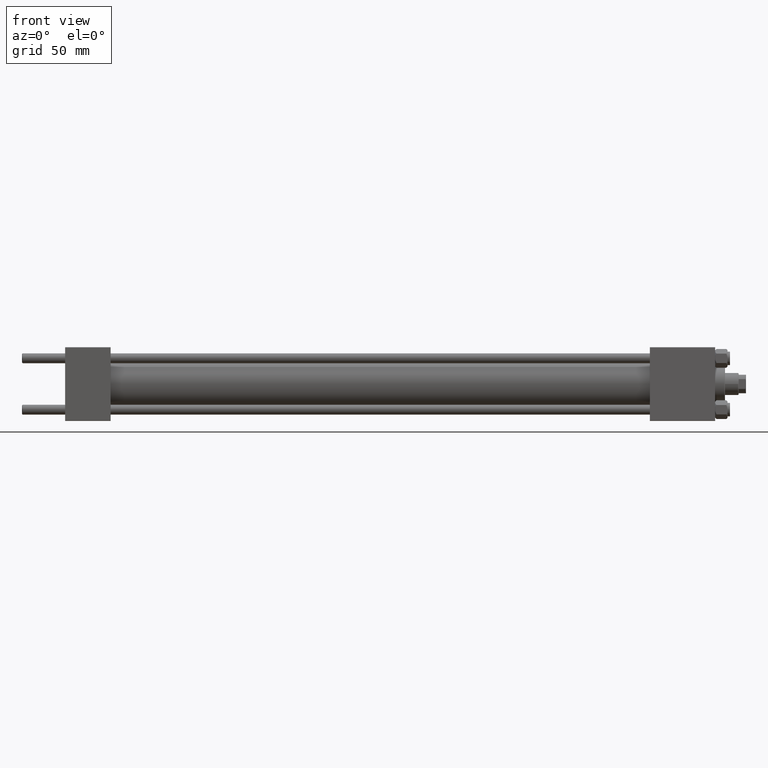
[diagram: clean part render]
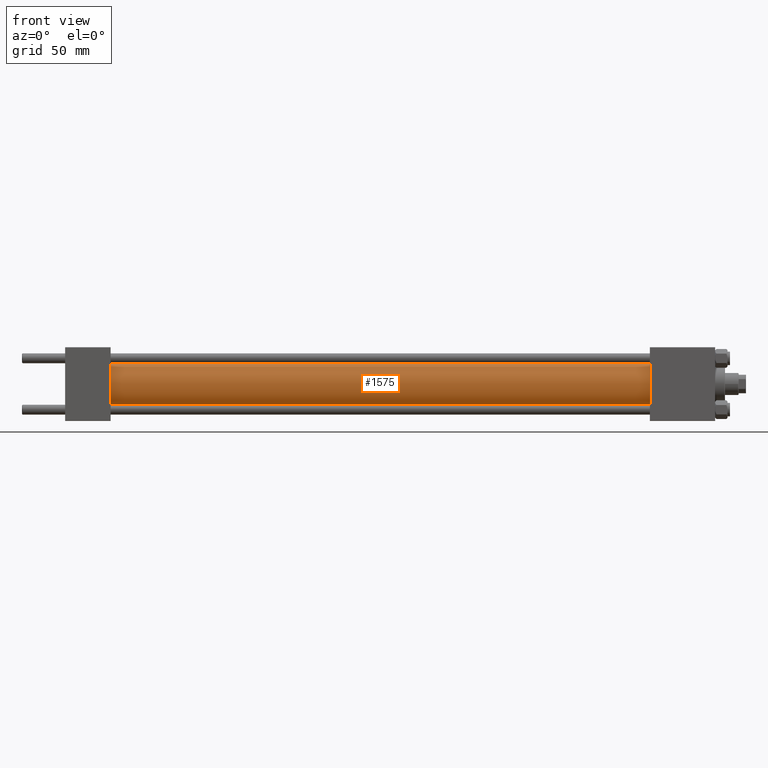
[diagram: same view with one face highlighted and labeled with its STEP entity id]
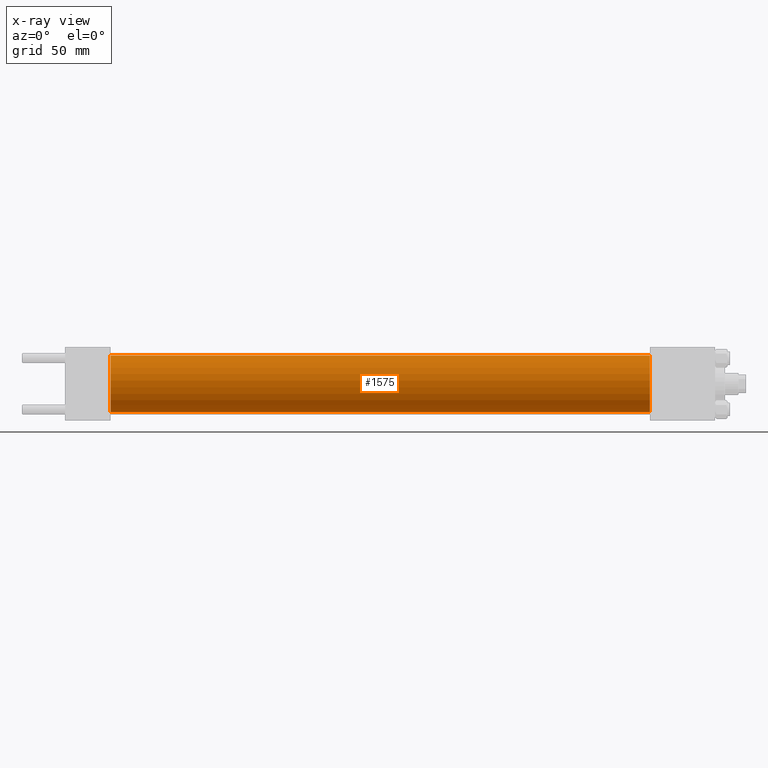
[diagram: x-ray of the same camera — body ghosted, the highlighted face saturated]
A machine part, front view. The second image highlights one B-rep face of the part: STEP entity #1575.
The next image is the same camera in x-ray: the body ghosted, the highlighted face saturated — about 0% of this face is hidden behind the body in this view.
In plain terms, the highlighted cylindrical surface (edge-blend (fillet) strip) has radius 23 mm, axis along (-1, -0, -0).
Its self-contained STEP definition (entity closure, byte-faithful):
#1575 = ADVANCED_FACE ( 'NONE', ( #17851 ), #48351, .T. ) ;
#2968 = CARTESIAN_POINT ( 'NONE',  ( 36.99999999999997868, 0.000000000000000000, 23.00000000000000000 ) ) ;
#3277 = LINE ( 'NONE', #14883, #27458 ) ;
#3314 = EDGE_CURVE ( 'NONE', #41269, #28073, #39149, .T. ) ;
#3327 = CARTESIAN_POINT ( 'NONE',  ( 36.99999999999997868, 0.000000000000000000, 0.000000000000000000 ) ) ;
#5338 = CARTESIAN_POINT ( 'NONE',  ( 475.0000000000000000, 2.816687638038912352E-15, -23.00000000000000000 ) ) ;
#5677 = VERTEX_POINT ( 'NONE', #2968 ) ;
#6035 = AXIS2_PLACEMENT_3D ( 'NONE', #41283, #36755, #32978 ) ;
#8876 = DIRECTION ( 'NONE',  ( 0.000000000000000000, 0.000000000000000000, -1.000000000000000000 ) ) ;
#10360 = DIRECTION ( 'NONE',  ( -1.000000000000000000, -0.000000000000000000, -0.000000000000000000 ) ) ;
#10455 = ORIENTED_EDGE ( 'NONE', *, *, #3314, .F. ) ;
#11193 = EDGE_CURVE ( 'NONE', #41269, #5677, #31264, .T. ) ;
#11225 = VECTOR ( 'NONE', #12606, 1000.000000000000000 ) ;
#12403 = CARTESIAN_POINT ( 'NONE',  ( 475.0000000000000000, 0.000000000000000000, 0.000000000000000000 ) ) ;
#12606 = DIRECTION ( 'NONE',  ( -1.000000000000000000, -0.000000000000000000, -0.000000000000000000 ) ) ;
#12873 = EDGE_LOOP ( 'NONE', ( #45505, #10455, #36385, #27084 ) ) ;
#14883 = CARTESIAN_POINT ( 'NONE',  ( 475.0000000000000000, 2.816687638038912352E-15, -23.00000000000000000 ) ) ;
#17851 = FACE_OUTER_BOUND ( 'NONE', #12873, .T. ) ;
#17949 = AXIS2_PLACEMENT_3D ( 'NONE', #3327, #49721, #41901 ) ;
#23053 = AXIS2_PLACEMENT_3D ( 'NONE', #12403, #43392, #8876 ) ;
#26300 = VERTEX_POINT ( 'NONE', #49341 ) ;
#27084 = ORIENTED_EDGE ( 'NONE', *, *, #41692, .T. ) ;
#27458 = VECTOR ( 'NONE', #10360, 1000.000000000000000 ) ;
#28073 = VERTEX_POINT ( 'NONE', #5338 ) ;
#30016 = CIRCLE ( 'NONE', #17949, 23.00000000000000000 ) ;
#31264 = LINE ( 'NONE', #47136, #11225 ) ;
#32978 = DIRECTION ( 'NONE',  ( 0.000000000000000000, 0.000000000000000000, 1.000000000000000000 ) ) ;
#36385 = ORIENTED_EDGE ( 'NONE', *, *, #11193, .T. ) ;
#36755 = DIRECTION ( 'NONE',  ( -1.000000000000000000, -0.000000000000000000, -0.000000000000000000 ) ) ;
#37908 = EDGE_CURVE ( 'NONE', #28073, #26300, #3277, .T. ) ;
#39149 = CIRCLE ( 'NONE', #23053, 23.00000000000000000 ) ;
#41269 = VERTEX_POINT ( 'NONE', #48853 ) ;
#41283 = CARTESIAN_POINT ( 'NONE',  ( 475.0000000000000000, 0.000000000000000000, 0.000000000000000000 ) ) ;
#41692 = EDGE_CURVE ( 'NONE', #5677, #26300, #30016, .T. ) ;
#41901 = DIRECTION ( 'NONE',  ( 0.000000000000000000, 0.000000000000000000, 1.000000000000000000 ) ) ;
#43392 = DIRECTION ( 'NONE',  ( 1.000000000000000000, 0.000000000000000000, 0.000000000000000000 ) ) ;
#45505 = ORIENTED_EDGE ( 'NONE', *, *, #37908, .F. ) ;
#47136 = CARTESIAN_POINT ( 'NONE',  ( 475.0000000000000000, 0.000000000000000000, 23.00000000000000000 ) ) ;
#48351 = CYLINDRICAL_SURFACE ( 'NONE', #6035, 23.00000000000000000 ) ;
#48853 = CARTESIAN_POINT ( 'NONE',  ( 475.0000000000000000, 0.000000000000000000, 23.00000000000000000 ) ) ;
#49341 = CARTESIAN_POINT ( 'NONE',  ( 36.99999999999997868, 2.816687638038912352E-15, -23.00000000000000000 ) ) ;
#49721 = DIRECTION ( 'NONE',  ( 1.000000000000000000, -0.000000000000000000, 0.000000000000000000 ) ) ;